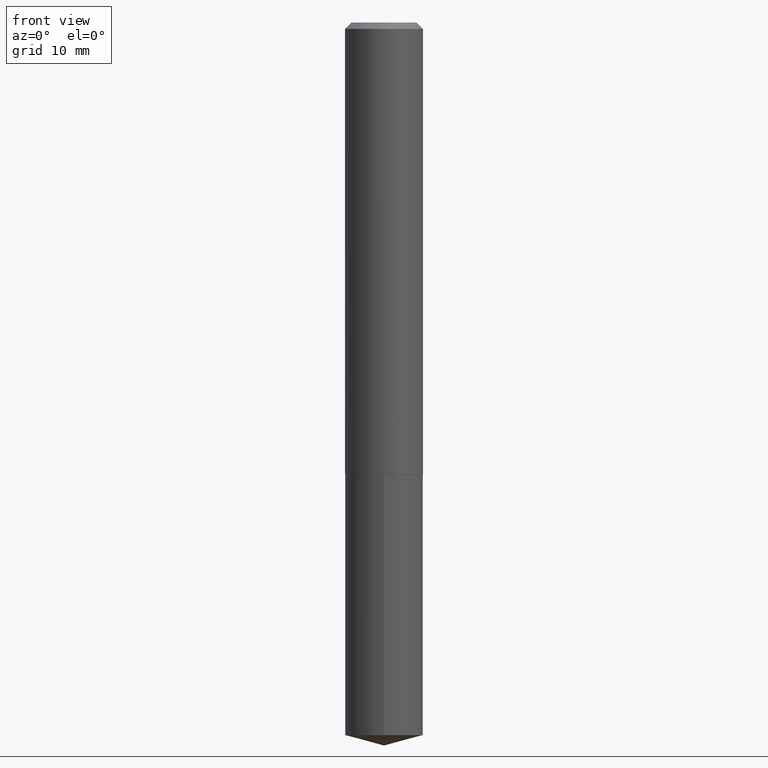
[diagram: clean part render]
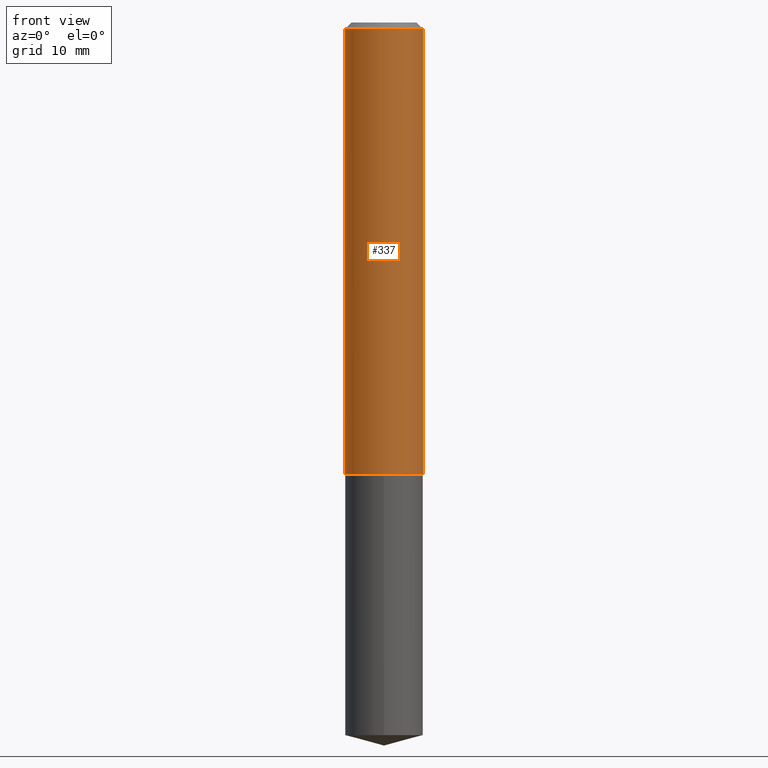
[diagram: same view with one face highlighted and labeled with its STEP entity id]
A machine part, front view. The second image highlights one B-rep face of the part: STEP entity #337.
In plain terms, the highlighted cylindrical surface (partial cylindrical patch) has radius 4.8006 mm, axis along (-0, 0, 1).
Its self-contained STEP definition (entity closure, byte-faithful):
#15 = VERTEX_POINT ( 'NONE', #200 ) ;
#23 = EDGE_CURVE ( 'NONE', #15, #308, #169, .T. ) ;
#29 = AXIS2_PLACEMENT_3D ( 'NONE', #261, #321, #102 ) ;
#42 = CARTESIAN_POINT ( 'NONE',  ( 7.642090019328602662E-31, -1.091087918388490267E-16, -0.03125000000000020817 ) ) ;
#45 = CARTESIAN_POINT ( 'NONE',  ( 0.1889999999999999736, -1.428888737921553328E-15, -0.03125000000000020817 ) ) ;
#68 = ORIENTED_EDGE ( 'NONE', *, *, #328, .F. ) ;
#73 = DIRECTION ( 'NONE',  ( 1.000000000000000000, -6.982962677686266711E-15, 4.876176775795936353E-29 ) ) ;
#89 = AXIS2_PLACEMENT_3D ( 'NONE', #345, #134, #73 ) ;
#100 = CARTESIAN_POINT ( 'NONE',  ( 0.1890000000000000846, -1.319779946082705016E-15, 9.215974106254323525E-30 ) ) ;
#102 = DIRECTION ( 'NONE',  ( 1.000000000000000000, -6.982962677686262766E-15, 0.000000000000000000 ) ) ;
#105 = CIRCLE ( 'NONE', #29, 0.1890000000000002234 ) ;
#111 = CARTESIAN_POINT ( 'NONE',  ( -0.1890000000000000846, 1.342925770586589952E-15, -9.296787320581776866E-30 ) ) ;
#127 = ORIENTED_EDGE ( 'NONE', *, *, #23, .T. ) ;
#133 = EDGE_LOOP ( 'NONE', ( #338, #152, #127, #68 ) ) ;
#134 = DIRECTION ( 'NONE',  ( -2.445468806185136597E-29, 3.491481338843145583E-15, 1.000000000000000000 ) ) ;
#139 = DIRECTION ( 'NONE',  ( -2.445468806185136877E-29, 3.491481338843145188E-15, 1.000000000000000000 ) ) ;
#151 = VECTOR ( 'NONE', #139, 39.37007874015748143 ) ;
#152 = ORIENTED_EDGE ( 'NONE', *, *, #230, .T. ) ;
#154 = AXIS2_PLACEMENT_3D ( 'NONE', #42, #290, #311 ) ;
#169 = LINE ( 'NONE', #100, #151 ) ;
#187 = VERTEX_POINT ( 'NONE', #194 ) ;
#194 = CARTESIAN_POINT ( 'NONE',  ( -0.1889999999999999736, -2.532182080361945239E-15, -0.03125000000000020817 ) ) ;
#200 = CARTESIAN_POINT ( 'NONE',  ( 0.1890000000000002234, -8.960886856140928862E-15, -2.188499999999999446 ) ) ;
#230 = EDGE_CURVE ( 'NONE', #341, #15, #105, .T. ) ;
#255 = DIRECTION ( 'NONE',  ( -2.445468806185136877E-29, 3.491481338843145188E-15, 1.000000000000000000 ) ) ;
#261 = CARTESIAN_POINT ( 'NONE',  ( 5.351908482336170787E-29, -7.641106910058223254E-15, -2.188499999999999446 ) ) ;
#265 = EDGE_CURVE ( 'NONE', #341, #187, #381, .T. ) ;
#266 = CYLINDRICAL_SURFACE ( 'NONE', #89, 0.1890000000000000846 ) ;
#290 = DIRECTION ( 'NONE',  ( -2.445468806185136597E-29, 3.491481338843145583E-15, 1.000000000000000000 ) ) ;
#296 = CIRCLE ( 'NONE', #154, 0.1889999999999999736 ) ;
#308 = VERTEX_POINT ( 'NONE', #45 ) ;
#311 = DIRECTION ( 'NONE',  ( 1.000000000000000000, -6.982962677686266711E-15, 0.000000000000000000 ) ) ;
#321 = DIRECTION ( 'NONE',  ( -2.445468806185136597E-29, 3.491481338843145583E-15, 1.000000000000000000 ) ) ;
#327 = VECTOR ( 'NONE', #255, 39.37007874015748143 ) ;
#328 = EDGE_CURVE ( 'NONE', #187, #308, #296, .T. ) ;
#337 = ADVANCED_FACE ( 'NONE', ( #348 ), #266, .T. ) ;
#338 = ORIENTED_EDGE ( 'NONE', *, *, #265, .F. ) ;
#341 = VERTEX_POINT ( 'NONE', #342 ) ;
#342 = CARTESIAN_POINT ( 'NONE',  ( -0.1890000000000002234, -6.298181139471631921E-15, -2.188499999999999446 ) ) ;
#345 = CARTESIAN_POINT ( 'NONE',  ( 0.000000000000000000, 0.000000000000000000, 0.000000000000000000 ) ) ;
#348 = FACE_OUTER_BOUND ( 'NONE', #133, .T. ) ;
#381 = LINE ( 'NONE', #111, #327 ) ;